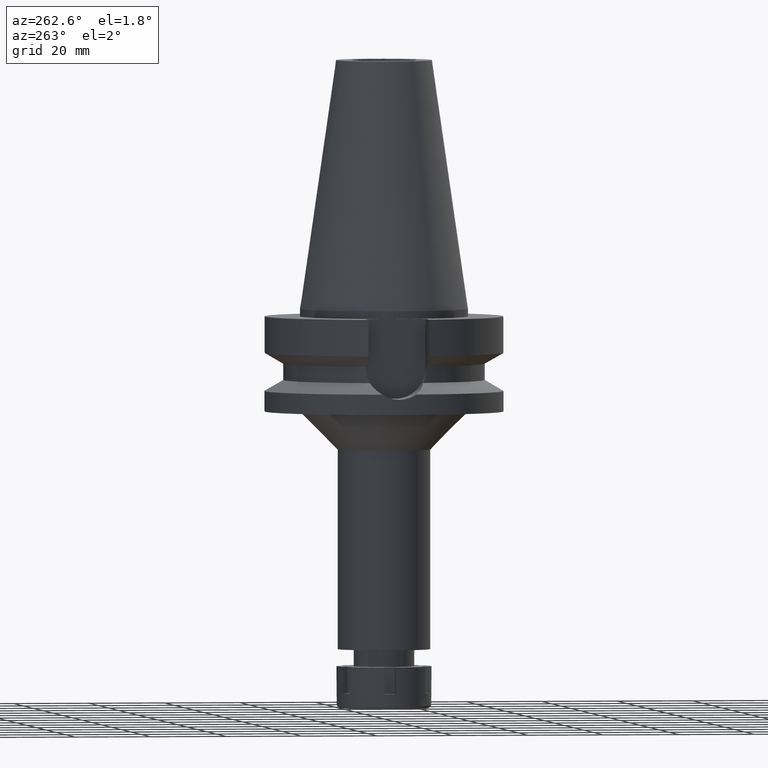
[diagram: clean part render]
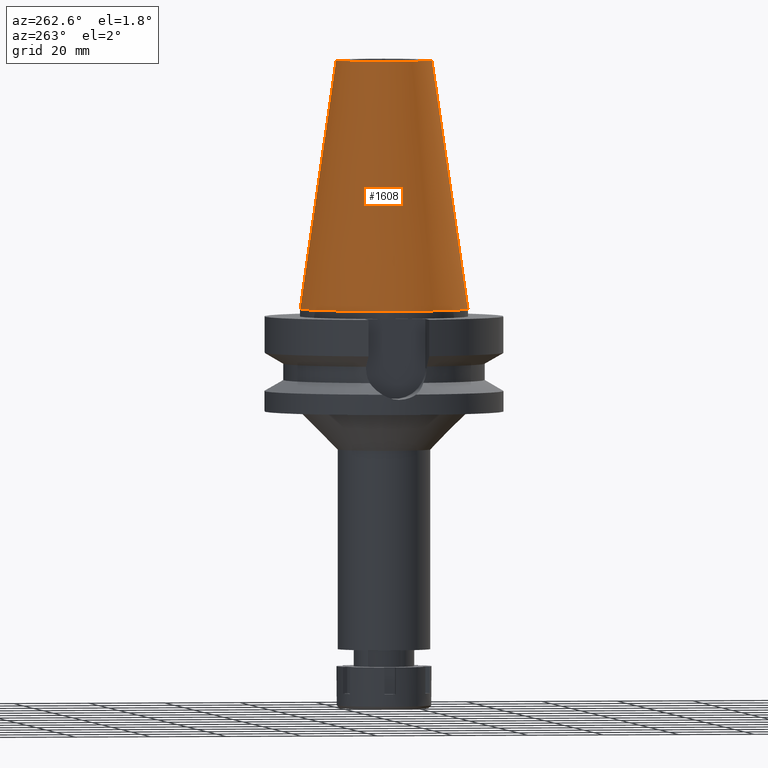
[diagram: same view with one face highlighted and labeled with its STEP entity id]
A machine part, auxiliary view. The second image highlights one B-rep face of the part: STEP entity #1608.
In plain terms, the highlighted conical surface has half-angle 8.297 deg.
Its self-contained STEP definition (entity closure, byte-faithful):
#307 = EDGE_CURVE ( 'NONE', #1982, #1237, #2008, .T. ) ;
#315 = CARTESIAN_POINT ( 'NONE',  ( 0.0000000000000000000, -22.22500000000000142, 2.842170943039999687E-14 ) ) ;
#368 = ORIENTED_EDGE ( 'NONE', *, *, #2255, .F. ) ;
#371 = DIRECTION ( 'NONE',  ( 0.0000000000000000000, 0.0000000000000000000, -1.000000000000000000 ) ) ;
#436 = EDGE_CURVE ( 'NONE', #3511, #3645, #1585, .T. ) ;
#515 = DIRECTION ( 'NONE',  ( 0.0000000000000000000, 0.0000000000000000000, -1.000000000000000000 ) ) ;
#902 = CARTESIAN_POINT ( 'NONE',  ( 0.0000000000000000000, -12.68766899429999917, 65.40000000000000568 ) ) ;
#918 = DIRECTION ( 'NONE',  ( 0.0000000000000000000, -0.1443043893539925626, -0.9895333461855498891 ) ) ;
#1222 = CARTESIAN_POINT ( 'NONE',  ( 0.0000000000000000000, -12.68766899429999917, 65.40000000000000568 ) ) ;
#1237 = VERTEX_POINT ( 'NONE', #315 ) ;
#1279 = VECTOR ( 'NONE', #918, 1000.000000000000114 ) ;
#1282 = ORIENTED_EDGE ( 'NONE', *, *, #436, .T. ) ;
#1360 = DIRECTION ( 'NONE',  ( 0.0000000000000000000, -1.000000000000000000, 0.0000000000000000000 ) ) ;
#1498 = CIRCLE ( 'NONE', #3136, 22.22500000000000142 ) ;
#1504 = AXIS2_PLACEMENT_3D ( 'NONE', #1715, #371, #3112 ) ;
#1585 = LINE ( 'NONE', #3002, #3043 ) ;
#1608 = ADVANCED_FACE ( 'NONE', ( #3302 ), #2116, .T. ) ;
#1715 = CARTESIAN_POINT ( 'NONE',  ( 0.0000000000000000000, 1.625106302469000024E-14, 65.40000000000000568 ) ) ;
#1872 = DIRECTION ( 'NONE',  ( 0.0000000000000000000, 0.0000000000000000000, -1.000000000000000000 ) ) ;
#1884 = AXIS2_PLACEMENT_3D ( 'NONE', #3350, #1872, #2992 ) ;
#1982 = VERTEX_POINT ( 'NONE', #1222 ) ;
#2008 = LINE ( 'NONE', #902, #1279 ) ;
#2116 = CONICAL_SURFACE ( 'NONE', #1884, 17.45633449714999941, 0.1448099680379422438 ) ;
#2255 = EDGE_CURVE ( 'NONE', #1237, #3645, #1498, .T. ) ;
#2339 = EDGE_LOOP ( 'NONE', ( #368, #3469, #3519, #1282 ) ) ;
#2836 = EDGE_CURVE ( 'NONE', #1982, #3511, #3206, .T. ) ;
#2981 = DIRECTION ( 'NONE',  ( 0.0000000000000000000, 0.1443043893539925626, -0.9895333461855498891 ) ) ;
#2992 = DIRECTION ( 'NONE',  ( 0.0000000000000000000, -1.000000000000000000, 0.0000000000000000000 ) ) ;
#3002 = CARTESIAN_POINT ( 'NONE',  ( 0.0000000000000000000, 12.68766899429999917, 65.40000000000000568 ) ) ;
#3043 = VECTOR ( 'NONE', #2981, 1000.000000000000114 ) ;
#3112 = DIRECTION ( 'NONE',  ( 0.0000000000000000000, -1.000000000000000000, 0.0000000000000000000 ) ) ;
#3136 = AXIS2_PLACEMENT_3D ( 'NONE', #3611, #515, #1360 ) ;
#3206 = CIRCLE ( 'NONE', #1504, 12.68766899429999917 ) ;
#3278 = CARTESIAN_POINT ( 'NONE',  ( 0.0000000000000000000, 22.22500000000000142, 7.105427357600999334E-14 ) ) ;
#3302 = FACE_OUTER_BOUND ( 'NONE', #2339, .T. ) ;
#3350 = CARTESIAN_POINT ( 'NONE',  ( 0.0000000000000000000, 1.625106302469000024E-14, 32.70000000000000284 ) ) ;
#3469 = ORIENTED_EDGE ( 'NONE', *, *, #307, .F. ) ;
#3511 = VERTEX_POINT ( 'NONE', #3532 ) ;
#3519 = ORIENTED_EDGE ( 'NONE', *, *, #2836, .T. ) ;
#3532 = CARTESIAN_POINT ( 'NONE',  ( 0.0000000000000000000, 12.68766899429999917, 65.40000000000000568 ) ) ;
#3611 = CARTESIAN_POINT ( 'NONE',  ( 0.0000000000000000000, 1.625106302469000024E-14, 2.842170943039999687E-14 ) ) ;
#3645 = VERTEX_POINT ( 'NONE', #3278 ) ;